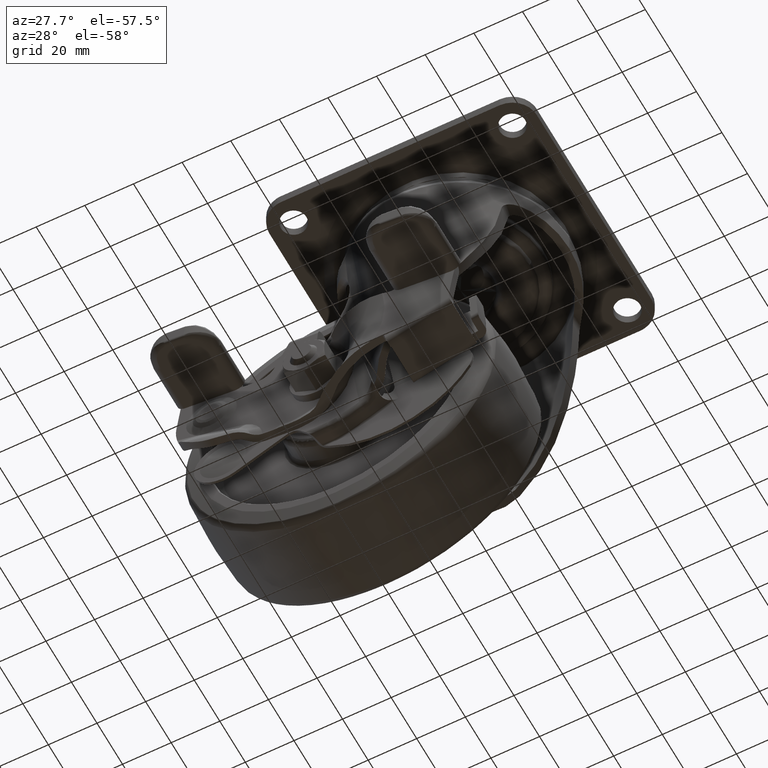
[diagram: clean part render]
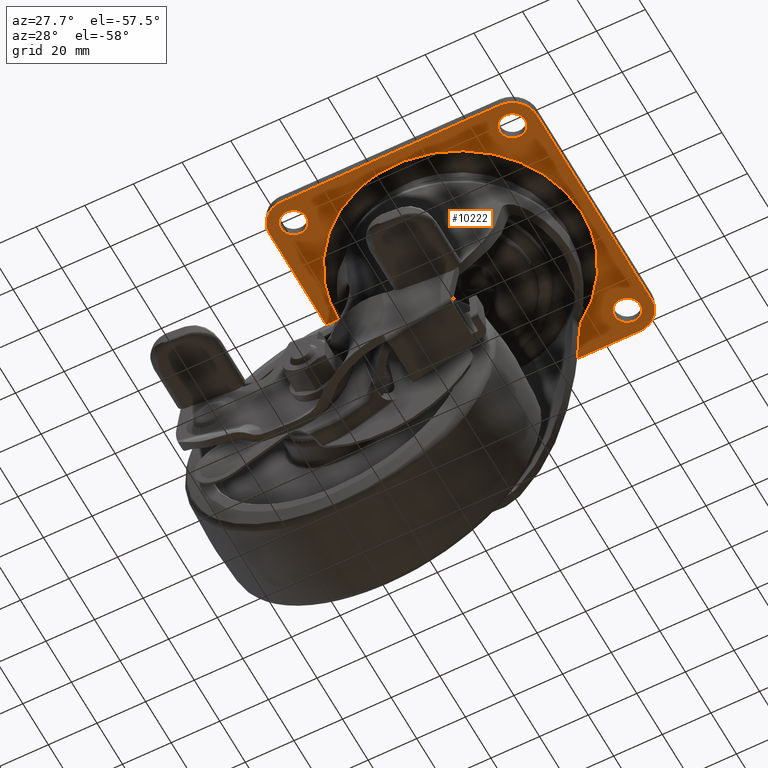
[diagram: same view with one face highlighted and labeled with its STEP entity id]
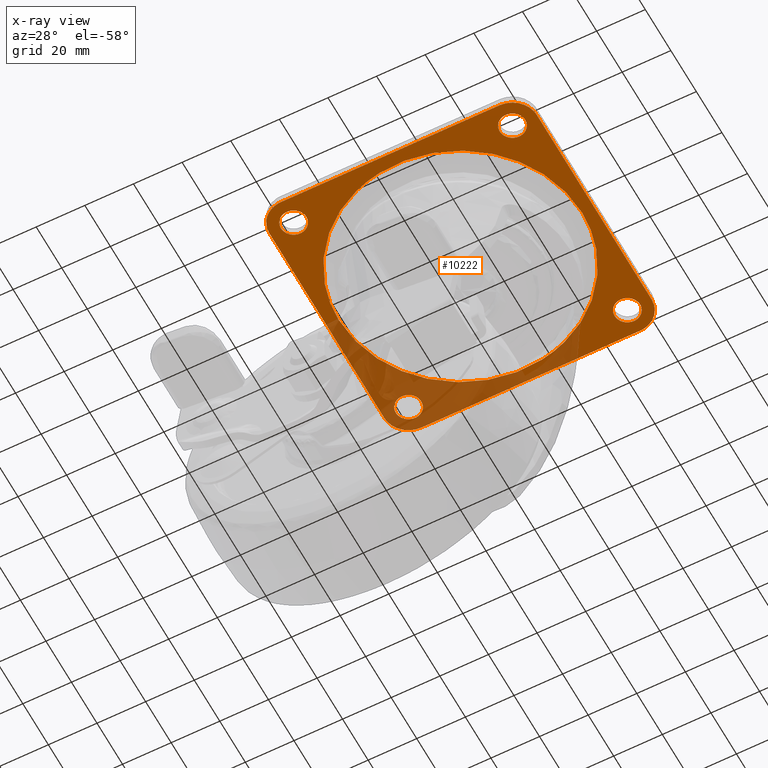
[diagram: x-ray of the same camera — body ghosted, the highlighted face saturated]
A machine part, auxiliary view. The second image highlights one B-rep face of the part: STEP entity #10222.
The next image is the same camera in x-ray: the body ghosted, the highlighted face saturated — about 28% of this face is hidden behind the body in this view.
In plain terms, the highlighted face is a freeform B-spline surface patch.
Its self-contained STEP definition (entity closure, byte-faithful):
#9266=CARTESIAN_POINT('',(18.325061336358321,46.520878399059796,-3.999999999990135));
#9267=VERTEX_POINT('',#9266);
#9273=CARTESIAN_POINT('',(50.0,1.421085E-014,-4.0));
#9274=VERTEX_POINT('',#9273);
#9275=CARTESIAN_POINT('',(18.325061336358321,46.520878399059796,-3.999999999990135));
#9276=CARTESIAN_POINT('',(50.000000000002558,34.043788244873241,-3.999999999995067));
#9277=CARTESIAN_POINT('',(50.0,1.421085E-014,-4.0));
#9285=(BOUNDED_CURVE()B_SPLINE_CURVE(2,(#9275,#9276,#9277),.UNSPECIFIED.,.F.,.U.)B_SPLINE_CURVE_WITH_KNOTS((3,3),(0.312230357107839,0.500000000000000),.UNSPECIFIED.)CURVE()GEOMETRIC_REPRESENTATION_ITEM()RATIONAL_B_SPLINE_CURVE((0.890481630698520,0.780014179591449,1.0))REPRESENTATION_ITEM(''));
#9286=EDGE_CURVE('',#9267,#9274,#9285,.T.);
#9288=CARTESIAN_POINT('',(-18.325061336358321,-46.520878399059768,-3.999999999990136));
#9289=VERTEX_POINT('',#9288);
#9290=CARTESIAN_POINT('',(50.0,1.421085E-014,-4.0));
#9291=CARTESIAN_POINT('',(49.999999999998259,-50.000000000004420,-3.999999999996641));
#9292=CARTESIAN_POINT('',(-4.302588E-012,-50.000000000010957,-3.999999999991710));
#9293=CARTESIAN_POINT('',(-9.492796605414762,-50.000000000012193,-3.999999999990773));
#9294=CARTESIAN_POINT('',(-18.325061336358321,-46.520878399059775,-3.999999999990136));
#9302=(BOUNDED_CURVE()B_SPLINE_CURVE(2,(#9290,#9291,#9292,#9293,#9294),.UNSPECIFIED.,.F.,.U.)B_SPLINE_CURVE_WITH_KNOTS((3,2,3),(0.500000000000000,0.750000000000000,0.812230357107839),.UNSPECIFIED.)CURVE()GEOMETRIC_REPRESENTATION_ITEM()RATIONAL_B_SPLINE_CURVE((1.0,0.707106781186547,1.0,0.927092601595098,0.890481630698520))REPRESENTATION_ITEM(''));
#9303=EDGE_CURVE('',#9274,#9289,#9302,.T.);
#9333=CARTESIAN_POINT('',(-50.0,1.421085E-014,-4.0));
#9334=VERTEX_POINT('',#9333);
#9335=CARTESIAN_POINT('',(-18.325061336358321,-46.520878399059775,-3.999999999990136));
#9336=CARTESIAN_POINT('',(-50.000000000002558,-34.043788244873198,-3.999999999995068));
#9337=CARTESIAN_POINT('',(-50.0,1.421085E-014,-4.0));
#9345=(BOUNDED_CURVE()B_SPLINE_CURVE(2,(#9335,#9336,#9337),.UNSPECIFIED.,.F.,.U.)B_SPLINE_CURVE_WITH_KNOTS((3,3),(0.812230357107839,1.0),.UNSPECIFIED.)CURVE()GEOMETRIC_REPRESENTATION_ITEM()RATIONAL_B_SPLINE_CURVE((0.890481630698520,0.780014179591449,1.0))REPRESENTATION_ITEM(''));
#9346=EDGE_CURVE('',#9289,#9334,#9345,.T.);
#9348=CARTESIAN_POINT('',(-50.0,1.421085E-014,-4.0));
#9349=CARTESIAN_POINT('',(-49.999999999998238,50.000000000004469,-3.999999999996641));
#9350=CARTESIAN_POINT('',(4.320503E-012,50.000000000010971,-3.999999999991709));
#9351=CARTESIAN_POINT('',(9.492796605414776,50.000000000012207,-3.999999999990772));
#9352=CARTESIAN_POINT('',(18.325061336358321,46.520878399059796,-3.999999999990135));
#9360=(BOUNDED_CURVE()B_SPLINE_CURVE(2,(#9348,#9349,#9350,#9351,#9352),.UNSPECIFIED.,.F.,.U.)B_SPLINE_CURVE_WITH_KNOTS((3,2,3),(0.0,0.250000000000000,0.312230357107839),.UNSPECIFIED.)CURVE()GEOMETRIC_REPRESENTATION_ITEM()RATIONAL_B_SPLINE_CURVE((1.0,0.707106781186547,1.0,0.927092601595098,0.890481630698520))REPRESENTATION_ITEM(''));
#9361=EDGE_CURVE('',#9334,#9267,#9360,.T.);
#9421=CARTESIAN_POINT('',(-44.679495167312780,50.240207691706900,-4.0));
#9422=VERTEX_POINT('',#9421);
#9428=CARTESIAN_POINT('',(-39.750000000000000,45.0,-4.0));
#9429=VERTEX_POINT('',#9428);
#9430=CARTESIAN_POINT('',(-39.750000000000000,45.0,-4.0));
#9431=CARTESIAN_POINT('',(-39.750000000000007,49.938706851132871,-4.000000000000001));
#9432=CARTESIAN_POINT('',(-44.679495167312780,50.240207691706878,-4.000000000000001));
#9440=(BOUNDED_CURVE()B_SPLINE_CURVE(2,(#9430,#9431,#9432),.UNSPECIFIED.,.F.,.U.)B_SPLINE_CURVE_WITH_KNOTS((3,3),(0.500000000000000,0.739332962237714),.UNSPECIFIED.)CURVE()GEOMETRIC_REPRESENTATION_ITEM()RATIONAL_B_SPLINE_CURVE((1.0,0.719603993288150,0.976072041664083))REPRESENTATION_ITEM(''));
#9441=EDGE_CURVE('',#9429,#9422,#9440,.T.);
#9443=CARTESIAN_POINT('',(-45.320504832687227,39.759792308293100,-4.0));
#9444=VERTEX_POINT('',#9443);
#9445=CARTESIAN_POINT('',(-45.320504832687242,39.759792308293100,-4.000000000000000));
#9446=CARTESIAN_POINT('',(-45.160402007382402,39.750000000000000,-4.0));
#9447=CARTESIAN_POINT('',(-45.0,39.750000000000000,-4.0));
#9448=CARTESIAN_POINT('',(-39.750000000000000,39.750000000000000,-4.0));
#9449=CARTESIAN_POINT('',(-39.750000000000000,45.0,-4.0));
#9457=(BOUNDED_CURVE()B_SPLINE_CURVE(2,(#9445,#9446,#9447,#9448,#9449),.UNSPECIFIED.,.F.,.U.)B_SPLINE_CURVE_WITH_KNOTS((3,2,3),(0.239332962237713,0.250000000000000,0.500000000000000),.UNSPECIFIED.)CURVE()GEOMETRIC_REPRESENTATION_ITEM()RATIONAL_B_SPLINE_CURVE((0.976072041664082,0.987502787898396,1.0,0.707106781186547,1.0))REPRESENTATION_ITEM(''));
#9458=EDGE_CURVE('',#9444,#9429,#9457,.T.);
#9502=CARTESIAN_POINT('',(-50.249999999999993,45.0,-4.0));
#9503=VERTEX_POINT('',#9502);
#9504=CARTESIAN_POINT('',(-50.249999999999993,45.0,-4.0));
#9505=CARTESIAN_POINT('',(-50.249999999999993,40.061293148867129,-4.000000000000001));
#9506=CARTESIAN_POINT('',(-45.320504832687242,39.759792308293100,-4.000000000000000));
#9514=(BOUNDED_CURVE()B_SPLINE_CURVE(2,(#9504,#9505,#9506),.UNSPECIFIED.,.F.,.U.)B_SPLINE_CURVE_WITH_KNOTS((3,3),(0.0,0.239332962237713),.UNSPECIFIED.)CURVE()GEOMETRIC_REPRESENTATION_ITEM()RATIONAL_B_SPLINE_CURVE((1.0,0.719603993288151,0.976072041664082))REPRESENTATION_ITEM(''));
#9515=EDGE_CURVE('',#9503,#9444,#9514,.T.);
#9517=CARTESIAN_POINT('',(-44.679495167312780,50.240207691706878,-4.000000000000001));
#9518=CARTESIAN_POINT('',(-44.839597992617627,50.249999999999986,-4.000000000000000));
#9519=CARTESIAN_POINT('',(-45.0,50.249999999999993,-4.0));
#9520=CARTESIAN_POINT('',(-50.249999999999986,50.249999999999986,-4.0));
#9521=CARTESIAN_POINT('',(-50.249999999999993,45.0,-4.0));
#9529=(BOUNDED_CURVE()B_SPLINE_CURVE(2,(#9517,#9518,#9519,#9520,#9521),.UNSPECIFIED.,.F.,.U.)B_SPLINE_CURVE_WITH_KNOTS((3,2,3),(0.739332962237714,0.750000000000000,1.0),.UNSPECIFIED.)CURVE()GEOMETRIC_REPRESENTATION_ITEM()RATIONAL_B_SPLINE_CURVE((0.976072041664083,0.987502787898397,1.0,0.707106781186547,1.0))REPRESENTATION_ITEM(''));
#9530=EDGE_CURVE('',#9422,#9503,#9529,.T.);
#9603=CARTESIAN_POINT('',(45.320504832687227,50.240207691706892,-4.0));
#9604=VERTEX_POINT('',#9603);
#9610=CARTESIAN_POINT('',(50.249999999999993,45.0,-4.0));
#9611=VERTEX_POINT('',#9610);
#9612=CARTESIAN_POINT('',(50.249999999999993,45.0,-4.0));
#9613=CARTESIAN_POINT('',(50.249999999999986,49.938706851132871,-4.000000000000000));
#9614=CARTESIAN_POINT('',(45.320504832687213,50.240207691706885,-4.0));
#9622=(BOUNDED_CURVE()B_SPLINE_CURVE(2,(#9612,#9613,#9614),.UNSPECIFIED.,.F.,.U.)B_SPLINE_CURVE_WITH_KNOTS((3,3),(0.500000000000000,0.739332962237713),.UNSPECIFIED.)CURVE()GEOMETRIC_REPRESENTATION_ITEM()RATIONAL_B_SPLINE_CURVE((1.0,0.719603993288151,0.976072041664082))REPRESENTATION_ITEM(''));
#9623=EDGE_CURVE('',#9611,#9604,#9622,.T.);
#9625=CARTESIAN_POINT('',(44.679495167312773,39.759792308293100,-4.0));
#9626=VERTEX_POINT('',#9625);
#9627=CARTESIAN_POINT('',(44.679495167312780,39.759792308293108,-4.0));
#9628=CARTESIAN_POINT('',(44.839597992617612,39.750000000000000,-4.000000000000000));
#9629=CARTESIAN_POINT('',(45.0,39.750000000000000,-4.0));
#9630=CARTESIAN_POINT('',(50.249999999999986,39.750000000000000,-4.0));
#9631=CARTESIAN_POINT('',(50.249999999999993,45.0,-4.0));
#9639=(BOUNDED_CURVE()B_SPLINE_CURVE(2,(#9627,#9628,#9629,#9630,#9631),.UNSPECIFIED.,.F.,.U.)B_SPLINE_CURVE_WITH_KNOTS((3,2,3),(0.239332962237713,0.250000000000000,0.500000000000000),.UNSPECIFIED.)CURVE()GEOMETRIC_REPRESENTATION_ITEM()RATIONAL_B_SPLINE_CURVE((0.976072041664082,0.987502787898397,1.0,0.707106781186547,1.0))REPRESENTATION_ITEM(''));
#9640=EDGE_CURVE('',#9626,#9611,#9639,.T.);
#9684=CARTESIAN_POINT('',(39.750000000000000,45.0,-4.0));
#9685=VERTEX_POINT('',#9684);
#9686=CARTESIAN_POINT('',(39.750000000000000,45.0,-4.0));
#9687=CARTESIAN_POINT('',(39.749999999999993,40.061293148867122,-4.000000000000000));
#9688=CARTESIAN_POINT('',(44.679495167312773,39.759792308293100,-4.0));
#9696=(BOUNDED_CURVE()B_SPLINE_CURVE(2,(#9686,#9687,#9688),.UNSPECIFIED.,.F.,.U.)B_SPLINE_CURVE_WITH_KNOTS((3,3),(0.0,0.239332962237713),.UNSPECIFIED.)CURVE()GEOMETRIC_REPRESENTATION_ITEM()RATIONAL_B_SPLINE_CURVE((1.0,0.719603993288151,0.976072041664082))REPRESENTATION_ITEM(''));
#9697=EDGE_CURVE('',#9685,#9626,#9696,.T.);
#9699=CARTESIAN_POINT('',(45.320504832687227,50.240207691706878,-4.0));
#9700=CARTESIAN_POINT('',(45.160402007382388,50.249999999999993,-4.0));
#9701=CARTESIAN_POINT('',(45.0,50.249999999999993,-4.0));
#9702=CARTESIAN_POINT('',(39.750000000000000,50.249999999999986,-4.0));
#9703=CARTESIAN_POINT('',(39.750000000000000,45.0,-4.0));
#9711=(BOUNDED_CURVE()B_SPLINE_CURVE(2,(#9699,#9700,#9701,#9702,#9703),.UNSPECIFIED.,.F.,.U.)B_SPLINE_CURVE_WITH_KNOTS((3,2,3),(0.739332962237713,0.750000000000000,1.0),.UNSPECIFIED.)CURVE()GEOMETRIC_REPRESENTATION_ITEM()RATIONAL_B_SPLINE_CURVE((0.976072041664082,0.987502787898397,1.0,0.707106781186547,1.0))REPRESENTATION_ITEM(''));
#9712=EDGE_CURVE('',#9604,#9685,#9711,.T.);
#9785=CARTESIAN_POINT('',(-44.679495167312773,-39.759792308293100,-4.0));
#9786=VERTEX_POINT('',#9785);
#9792=CARTESIAN_POINT('',(-39.750000000000000,-45.0,-4.0));
#9793=VERTEX_POINT('',#9792);
#9794=CARTESIAN_POINT('',(-39.750000000000000,-45.0,-4.0));
#9795=CARTESIAN_POINT('',(-39.750000000000007,-40.061293148867122,-4.000000000000000));
#9796=CARTESIAN_POINT('',(-44.679495167312758,-39.759792308293093,-4.0));
#9804=(BOUNDED_CURVE()B_SPLINE_CURVE(2,(#9794,#9795,#9796),.UNSPECIFIED.,.F.,.U.)B_SPLINE_CURVE_WITH_KNOTS((3,3),(0.500000000000000,0.739332962237713),.UNSPECIFIED.)CURVE()GEOMETRIC_REPRESENTATION_ITEM()RATIONAL_B_SPLINE_CURVE((1.0,0.719603993288151,0.976072041664082))REPRESENTATION_ITEM(''));
#9805=EDGE_CURVE('',#9793,#9786,#9804,.T.);
#9807=CARTESIAN_POINT('',(-45.320504832687227,-50.240207691706900,-4.0));
#9808=VERTEX_POINT('',#9807);
#9809=CARTESIAN_POINT('',(-45.320504832687213,-50.240207691706885,-4.0));
#9810=CARTESIAN_POINT('',(-45.160402007382388,-50.250000000000000,-4.000000000000001));
#9811=CARTESIAN_POINT('',(-45.0,-50.249999999999993,-4.0));
#9812=CARTESIAN_POINT('',(-39.750000000000000,-50.249999999999986,-4.0));
#9813=CARTESIAN_POINT('',(-39.750000000000000,-45.0,-4.0));
#9821=(BOUNDED_CURVE()B_SPLINE_CURVE(2,(#9809,#9810,#9811,#9812,#9813),.UNSPECIFIED.,.F.,.U.)B_SPLINE_CURVE_WITH_KNOTS((3,2,3),(0.239332962237713,0.250000000000000,0.500000000000000),.UNSPECIFIED.)CURVE()GEOMETRIC_REPRESENTATION_ITEM()RATIONAL_B_SPLINE_CURVE((0.976072041664082,0.987502787898397,1.0,0.707106781186547,1.0))REPRESENTATION_ITEM(''));
#9822=EDGE_CURVE('',#9808,#9793,#9821,.T.);
#9866=CARTESIAN_POINT('',(-50.249999999999993,-45.0,-4.0));
#9867=VERTEX_POINT('',#9866);
#9868=CARTESIAN_POINT('',(-50.249999999999993,-45.0,-4.0));
#9869=CARTESIAN_POINT('',(-50.250000000000007,-49.938706851132871,-4.000000000000000));
#9870=CARTESIAN_POINT('',(-45.320504832687220,-50.240207691706885,-4.000000000000001));
#9878=(BOUNDED_CURVE()B_SPLINE_CURVE(2,(#9868,#9869,#9870),.UNSPECIFIED.,.F.,.U.)B_SPLINE_CURVE_WITH_KNOTS((3,3),(0.0,0.239332962237713),.UNSPECIFIED.)CURVE()GEOMETRIC_REPRESENTATION_ITEM()RATIONAL_B_SPLINE_CURVE((1.0,0.719603993288151,0.976072041664082))REPRESENTATION_ITEM(''));
#9879=EDGE_CURVE('',#9867,#9808,#9878,.T.);
#9881=CARTESIAN_POINT('',(-44.679495167312780,-39.759792308293108,-4.0));
#9882=CARTESIAN_POINT('',(-44.839597992617620,-39.750000000000000,-4.0));
#9883=CARTESIAN_POINT('',(-45.0,-39.750000000000000,-4.0));
#9884=CARTESIAN_POINT('',(-50.249999999999986,-39.750000000000000,-4.0));
#9885=CARTESIAN_POINT('',(-50.249999999999993,-45.0,-4.0));
#9893=(BOUNDED_CURVE()B_SPLINE_CURVE(2,(#9881,#9882,#9883,#9884,#9885),.UNSPECIFIED.,.F.,.U.)B_SPLINE_CURVE_WITH_KNOTS((3,2,3),(0.739332962237713,0.750000000000000,1.0),.UNSPECIFIED.)CURVE()GEOMETRIC_REPRESENTATION_ITEM()RATIONAL_B_SPLINE_CURVE((0.976072041664082,0.987502787898397,1.0,0.707106781186547,1.0))REPRESENTATION_ITEM(''));
#9894=EDGE_CURVE('',#9786,#9867,#9893,.T.);
#9967=CARTESIAN_POINT('',(45.320504832687220,-39.759792308293100,-4.0));
#9968=VERTEX_POINT('',#9967);
#9974=CARTESIAN_POINT('',(50.249999999999993,-45.0,-4.0));
#9975=VERTEX_POINT('',#9974);
#9976=CARTESIAN_POINT('',(50.249999999999993,-45.0,-4.0));
#9977=CARTESIAN_POINT('',(50.249999999999993,-40.061293148867108,-4.000000000000000));
#9978=CARTESIAN_POINT('',(45.320504832687234,-39.759792308293108,-4.000000000000000));
#9986=(BOUNDED_CURVE()B_SPLINE_CURVE(2,(#9976,#9977,#9978),.UNSPECIFIED.,.F.,.U.)B_SPLINE_CURVE_WITH_KNOTS((3,3),(0.500000000000000,0.739332962237713),.UNSPECIFIED.)CURVE()GEOMETRIC_REPRESENTATION_ITEM()RATIONAL_B_SPLINE_CURVE((1.0,0.719603993288151,0.976072041664083))REPRESENTATION_ITEM(''));
#9987=EDGE_CURVE('',#9975,#9968,#9986,.T.);
#9989=CARTESIAN_POINT('',(44.679495167312780,-50.240207691706892,-4.0));
#9990=VERTEX_POINT('',#9989);
#9991=CARTESIAN_POINT('',(44.679495167312787,-50.240207691706892,-4.000000000000001));
#9992=CARTESIAN_POINT('',(44.839597992617620,-50.249999999999986,-4.000000000000001));
#9993=CARTESIAN_POINT('',(45.0,-50.249999999999993,-4.0));
#9994=CARTESIAN_POINT('',(50.249999999999986,-50.249999999999986,-4.0));
#9995=CARTESIAN_POINT('',(50.249999999999993,-45.0,-4.0));
#10003=(BOUNDED_CURVE()B_SPLINE_CURVE(2,(#9991,#9992,#9993,#9994,#9995),.UNSPECIFIED.,.F.,.U.)B_SPLINE_CURVE_WITH_KNOTS((3,2,3),(0.239332962237714,0.250000000000000,0.500000000000000),.UNSPECIFIED.)CURVE()GEOMETRIC_REPRESENTATION_ITEM()RATIONAL_B_SPLINE_CURVE((0.976072041664083,0.987502787898397,1.0,0.707106781186547,1.0))REPRESENTATION_ITEM(''));
#10004=EDGE_CURVE('',#9990,#9975,#10003,.T.);
#10048=CARTESIAN_POINT('',(39.750000000000000,-45.0,-4.0));
#10049=VERTEX_POINT('',#10048);
#10050=CARTESIAN_POINT('',(39.750000000000000,-45.0,-4.0));
#10051=CARTESIAN_POINT('',(39.750000000000000,-49.938706851132864,-4.0));
#10052=CARTESIAN_POINT('',(44.679495167312787,-50.240207691706892,-4.000000000000000));
#10060=(BOUNDED_CURVE()B_SPLINE_CURVE(2,(#10050,#10051,#10052),.UNSPECIFIED.,.F.,.U.)B_SPLINE_CURVE_WITH_KNOTS((3,3),(0.0,0.239332962237713),.UNSPECIFIED.)CURVE()GEOMETRIC_REPRESENTATION_ITEM()RATIONAL_B_SPLINE_CURVE((1.0,0.719603993288151,0.976072041664082))REPRESENTATION_ITEM(''));
#10061=EDGE_CURVE('',#10049,#9990,#10060,.T.);
#10063=CARTESIAN_POINT('',(45.320504832687220,-39.759792308293100,-4.000000000000001));
#10064=CARTESIAN_POINT('',(45.160402007382380,-39.749999999999993,-4.000000000000000));
#10065=CARTESIAN_POINT('',(45.0,-39.750000000000000,-4.0));
#10066=CARTESIAN_POINT('',(39.750000000000000,-39.750000000000000,-4.0));
#10067=CARTESIAN_POINT('',(39.750000000000000,-45.0,-4.0));
#10075=(BOUNDED_CURVE()B_SPLINE_CURVE(2,(#10063,#10064,#10065,#10066,#10067),.UNSPECIFIED.,.F.,.U.)B_SPLINE_CURVE_WITH_KNOTS((3,2,3),(0.739332962237714,0.750000000000000,1.0),.UNSPECIFIED.)CURVE()GEOMETRIC_REPRESENTATION_ITEM()RATIONAL_B_SPLINE_CURVE((0.976072041664083,0.987502787898397,1.0,0.707106781186547,1.0))REPRESENTATION_ITEM(''));
#10076=EDGE_CURVE('',#9968,#10049,#10075,.T.);
#10097=CARTESIAN_POINT('',(-60.494499786798663,60.494499786798663,-4.0));
#10098=CARTESIAN_POINT('',(60.494502737228572,60.494499786798663,-4.0));
#10099=CARTESIAN_POINT('',(-60.494499786798663,-60.494502737228572,-4.0));
#10100=CARTESIAN_POINT('',(60.494502737228572,-60.494502737228572,-4.0));
#10101=B_SPLINE_SURFACE_WITH_KNOTS('',1,1,((#10097,#10099),(#10098,#10100)),.UNSPECIFIED.,.F.,.F.,.U.,(2,2),(2,2),(0.0,120.989002524027200),(0.0,120.989002524027200),.UNSPECIFIED.);
#10102=CARTESIAN_POINT('',(55.0,45.0,-4.0));
#10103=VERTEX_POINT('',#10102);
#10104=CARTESIAN_POINT('',(45.0,55.0,-4.0));
#10105=VERTEX_POINT('',#10104);
#10106=CARTESIAN_POINT('',(55.0,45.0,-4.0));
#10107=CARTESIAN_POINT('',(55.000000000000007,55.000000000000007,-4.000000000000000));
#10108=CARTESIAN_POINT('',(45.0,55.0,-4.0));
#10116=(BOUNDED_CURVE()B_SPLINE_CURVE(2,(#10106,#10107,#10108),.UNSPECIFIED.,.F.,.U.)CURVE()GEOMETRIC_REPRESENTATION_ITEM()QUASI_UNIFORM_CURVE()RATIONAL_B_SPLINE_CURVE((1.0,0.707106781186548,1.0))REPRESENTATION_ITEM(''));
#10117=EDGE_CURVE('',#10103,#10105,#10116,.T.);
#10118=ORIENTED_EDGE('',*,*,#10117,.F.);
#10119=CARTESIAN_POINT('',(55.0,-45.0,-4.0));
#10120=VERTEX_POINT('',#10119);
#10121=CARTESIAN_POINT('',(55.0,-45.0,-4.0));
#10122=CARTESIAN_POINT('',(55.0,45.0,-4.0));
#10123=QUASI_UNIFORM_CURVE('',1,(#10121,#10122),.UNSPECIFIED.,.F.,.U.);
#10124=EDGE_CURVE('',#10120,#10103,#10123,.T.);
#10125=ORIENTED_EDGE('',*,*,#10124,.F.);
#10126=CARTESIAN_POINT('',(45.0,-55.0,-4.0));
#10127=VERTEX_POINT('',#10126);
#10128=CARTESIAN_POINT('',(45.0,-55.0,-4.0));
#10129=CARTESIAN_POINT('',(55.000000000000007,-55.000000000000007,-4.000000000000000));
#10130=CARTESIAN_POINT('',(55.0,-45.0,-4.0));
#10138=(BOUNDED_CURVE()B_SPLINE_CURVE(2,(#10128,#10129,#10130),.UNSPECIFIED.,.F.,.U.)CURVE()GEOMETRIC_REPRESENTATION_ITEM()QUASI_UNIFORM_CURVE()RATIONAL_B_SPLINE_CURVE((1.0,0.707106781186548,1.0))REPRESENTATION_ITEM(''));
#10139=EDGE_CURVE('',#10127,#10120,#10138,.T.);
#10140=ORIENTED_EDGE('',*,*,#10139,.F.);
#10141=CARTESIAN_POINT('',(-45.0,-55.0,-4.0));
#10142=VERTEX_POINT('',#10141);
#10143=CARTESIAN_POINT('',(-45.0,-55.0,-4.0));
#10144=CARTESIAN_POINT('',(45.0,-55.0,-4.0));
#10145=QUASI_UNIFORM_CURVE('',1,(#10143,#10144),.UNSPECIFIED.,.F.,.U.);
#10146=EDGE_CURVE('',#10142,#10127,#10145,.T.);
#10147=ORIENTED_EDGE('',*,*,#10146,.F.);
#10148=CARTESIAN_POINT('',(-55.0,-45.0,-4.0));
#10149=VERTEX_POINT('',#10148);
#10150=CARTESIAN_POINT('',(-55.0,-45.0,-4.0));
#10151=CARTESIAN_POINT('',(-55.000000000000007,-55.000000000000007,-4.000000000000000));
#10152=CARTESIAN_POINT('',(-45.0,-55.0,-4.0));
#10160=(BOUNDED_CURVE()B_SPLINE_CURVE(2,(#10150,#10151,#10152),.UNSPECIFIED.,.F.,.U.)CURVE()GEOMETRIC_REPRESENTATION_ITEM()QUASI_UNIFORM_CURVE()RATIONAL_B_SPLINE_CURVE((1.0,0.707106781186548,1.0))REPRESENTATION_ITEM(''));
#10161=EDGE_CURVE('',#10149,#10142,#10160,.T.);
#10162=ORIENTED_EDGE('',*,*,#10161,.F.);
#10163=CARTESIAN_POINT('',(-55.0,45.0,-4.0));
#10164=VERTEX_POINT('',#10163);
#10165=CARTESIAN_POINT('',(-55.0,45.0,-4.0));
#10166=CARTESIAN_POINT('',(-55.0,-45.0,-4.0));
#10167=QUASI_UNIFORM_CURVE('',1,(#10165,#10166),.UNSPECIFIED.,.F.,.U.);
#10168=EDGE_CURVE('',#10164,#10149,#10167,.T.);
#10169=ORIENTED_EDGE('',*,*,#10168,.F.);
#10170=CARTESIAN_POINT('',(-45.0,55.0,-4.0));
#10171=VERTEX_POINT('',#10170);
#10172=CARTESIAN_POINT('',(-45.0,55.0,-4.0));
#10173=CARTESIAN_POINT('',(-55.000000000000007,55.000000000000007,-4.000000000000000));
#10174=CARTESIAN_POINT('',(-55.0,45.0,-4.0));
#10182=(BOUNDED_CURVE()B_SPLINE_CURVE(2,(#10172,#10173,#10174),.UNSPECIFIED.,.F.,.U.)CURVE()GEOMETRIC_REPRESENTATION_ITEM()QUASI_UNIFORM_CURVE()RATIONAL_B_SPLINE_CURVE((1.0,0.707106781186548,1.0))REPRESENTATION_ITEM(''));
#10183=EDGE_CURVE('',#10171,#10164,#10182,.T.);
#10184=ORIENTED_EDGE('',*,*,#10183,.F.);
#10185=CARTESIAN_POINT('',(45.0,55.0,-4.0));
#10186=CARTESIAN_POINT('',(-45.0,55.0,-4.0));
#10187=QUASI_UNIFORM_CURVE('',1,(#10185,#10186),.UNSPECIFIED.,.F.,.U.);
#10188=EDGE_CURVE('',#10105,#10171,#10187,.T.);
#10189=ORIENTED_EDGE('',*,*,#10188,.F.);
#10190=EDGE_LOOP('',(#10118,#10125,#10140,#10147,#10162,#10169,#10184,#10189));
#10191=FACE_OUTER_BOUND('',#10190,.T.);
#10192=ORIENTED_EDGE('',*,*,#9987,.T.);
#10193=ORIENTED_EDGE('',*,*,#10076,.T.);
#10194=ORIENTED_EDGE('',*,*,#10061,.T.);
#10195=ORIENTED_EDGE('',*,*,#10004,.T.);
#10196=EDGE_LOOP('',(#10192,#10193,#10194,#10195));
#10197=FACE_BOUND('',#10196,.T.);
#10198=ORIENTED_EDGE('',*,*,#9805,.T.);
#10199=ORIENTED_EDGE('',*,*,#9894,.T.);
#10200=ORIENTED_EDGE('',*,*,#9879,.T.);
#10201=ORIENTED_EDGE('',*,*,#9822,.T.);
#10202=EDGE_LOOP('',(#10198,#10199,#10200,#10201));
#10203=FACE_BOUND('',#10202,.T.);
#10204=ORIENTED_EDGE('',*,*,#9623,.T.);
#10205=ORIENTED_EDGE('',*,*,#9712,.T.);
#10206=ORIENTED_EDGE('',*,*,#9697,.T.);
#10207=ORIENTED_EDGE('',*,*,#9640,.T.);
#10208=EDGE_LOOP('',(#10204,#10205,#10206,#10207));
#10209=FACE_BOUND('',#10208,.T.);
#10210=ORIENTED_EDGE('',*,*,#9441,.T.);
#10211=ORIENTED_EDGE('',*,*,#9530,.T.);
#10212=ORIENTED_EDGE('',*,*,#9515,.T.);
#10213=ORIENTED_EDGE('',*,*,#9458,.T.);
#10214=EDGE_LOOP('',(#10210,#10211,#10212,#10213));
#10215=FACE_BOUND('',#10214,.T.);
#10216=ORIENTED_EDGE('',*,*,#9361,.F.);
#10217=ORIENTED_EDGE('',*,*,#9346,.F.);
#10218=ORIENTED_EDGE('',*,*,#9303,.F.);
#10219=ORIENTED_EDGE('',*,*,#9286,.F.);
#10220=EDGE_LOOP('',(#10216,#10217,#10218,#10219));
#10221=FACE_BOUND('',#10220,.T.);
#10222=ADVANCED_FACE('',(#10191,#10197,#10203,#10209,#10215,#10221),#10101,.T.);